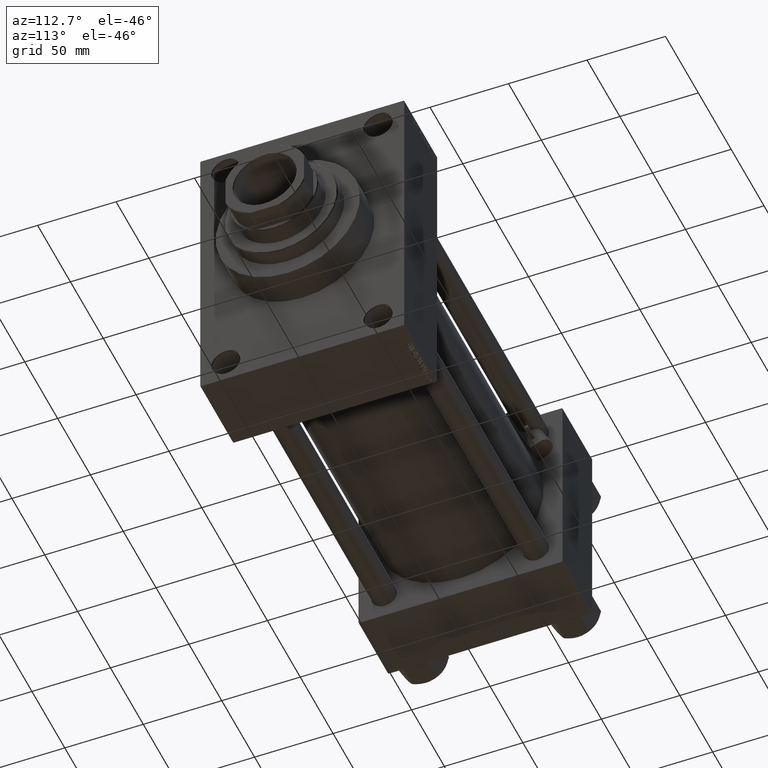
[diagram: clean part render]
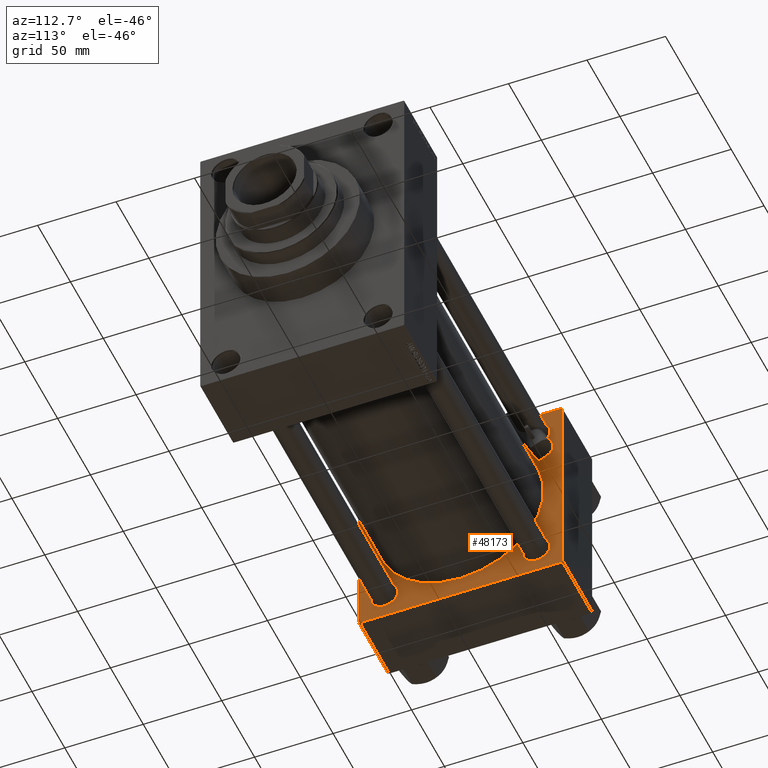
[diagram: same view with one face highlighted and labeled with its STEP entity id]
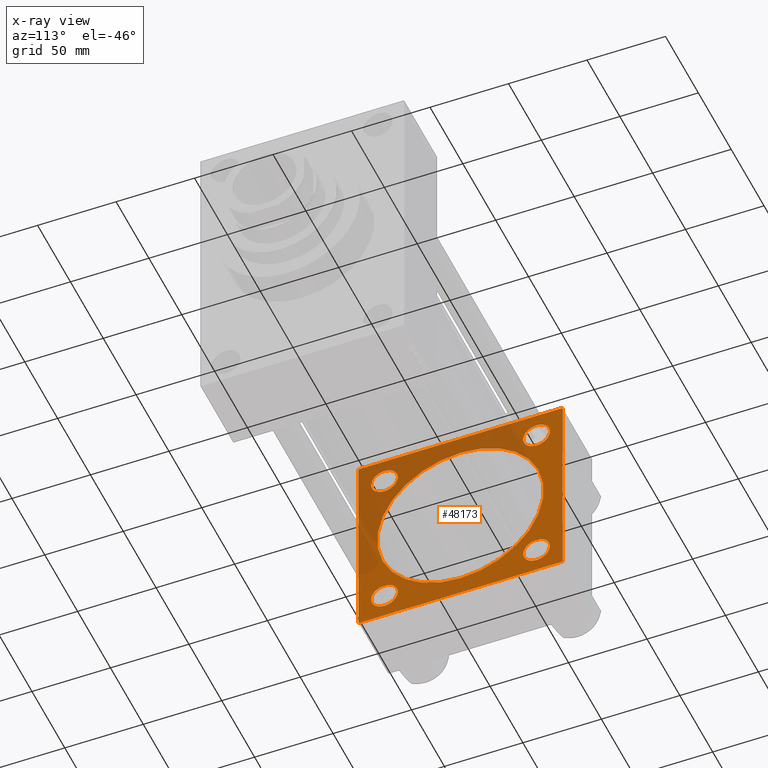
[diagram: x-ray of the same camera — body ghosted, the highlighted face saturated]
A machine part, auxiliary view. The second image highlights one B-rep face of the part: STEP entity #48173.
The next image is the same camera in x-ray: the body ghosted, the highlighted face saturated — about 37% of this face is hidden behind the body in this view.
In plain terms, the highlighted planar face has unit normal (-1, 0, 0).
Its self-contained STEP definition (entity closure, byte-faithful):
#177 = AXIS2_PLACEMENT_3D ( 'NONE', #17802, #32871, #14582 ) ;
#591 = CARTESIAN_POINT ( 'NONE',  ( 45.00000000000000000, 48.45000000000000995, -48.45000000000001705 ) ) ;
#996 = CIRCLE ( 'NONE', #26118, 8.500000000000007105 ) ;
#1203 = DIRECTION ( 'NONE',  ( 1.000000000000000000, -0.000000000000000000, 0.000000000000000000 ) ) ;
#1392 = ORIENTED_EDGE ( 'NONE', *, *, #47196, .T. ) ;
#2723 = AXIS2_PLACEMENT_3D ( 'NONE', #10960, #15409, #3558 ) ;
#2805 = EDGE_CURVE ( 'NONE', #21128, #20370, #38162, .T. ) ;
#2915 = VERTEX_POINT ( 'NONE', #45778 ) ;
#3014 = ORIENTED_EDGE ( 'NONE', *, *, #28956, .F. ) ;
#3517 = ORIENTED_EDGE ( 'NONE', *, *, #20898, .T. ) ;
#3558 = DIRECTION ( 'NONE',  ( 0.000000000000000000, 0.000000000000000000, 1.000000000000000000 ) ) ;
#4017 = VECTOR ( 'NONE', #11678, 1000.000000000000000 ) ;
#4498 = LINE ( 'NONE', #38078, #23756 ) ;
#4811 = CARTESIAN_POINT ( 'NONE',  ( 45.00000000000000000, 65.00000000000000000, 65.00000000000001421 ) ) ;
#4866 = EDGE_LOOP ( 'NONE', ( #32804, #17348 ) ) ;
#5052 = VECTOR ( 'NONE', #43078, 1000.000000000000000 ) ;
#5221 = CIRCLE ( 'NONE', #23391, 8.500000000000007105 ) ;
#6345 = EDGE_CURVE ( 'NONE', #2915, #31815, #13691, .T. ) ;
#7552 = ORIENTED_EDGE ( 'NONE', *, *, #38039, .T. ) ;
#7822 = ORIENTED_EDGE ( 'NONE', *, *, #23628, .F. ) ;
#7863 = CARTESIAN_POINT ( 'NONE',  ( 44.99999999999998579, -2.602085213965210642E-15, 0.000000000000000000 ) ) ;
#7883 = ORIENTED_EDGE ( 'NONE', *, *, #8517, .T. ) ;
#7956 = DIRECTION ( 'NONE',  ( 0.000000000000000000, -1.000000000000000000, -1.067522139062650425E-16 ) ) ;
#7967 = EDGE_CURVE ( 'NONE', #47102, #38177, #5221, .T. ) ;
#8109 = EDGE_CURVE ( 'NONE', #43784, #24369, #36780, .T. ) ;
#8367 = PLANE ( 'NONE',  #36718 ) ;
#8517 = EDGE_CURVE ( 'NONE', #31815, #24080, #22789, .T. ) ;
#9329 = VERTEX_POINT ( 'NONE', #28313 ) ;
#9986 = CARTESIAN_POINT ( 'NONE',  ( 45.00000000000000000, -65.00000000000000000, 64.50000000000000000 ) ) ;
#10377 = VERTEX_POINT ( 'NONE', #11272 ) ;
#10960 = CARTESIAN_POINT ( 'NONE',  ( 45.00000000000000000, 48.45000000000000995, 48.45000000000001705 ) ) ;
#11272 = CARTESIAN_POINT ( 'NONE',  ( 44.99999999999998579, -2.602085213965210642E-15, 53.00000000000000711 ) ) ;
#11315 = VERTEX_POINT ( 'NONE', #32372 ) ;
#11355 = CARTESIAN_POINT ( 'NONE',  ( 45.00000000000000000, 48.45000000000000995, 56.95000000000002416 ) ) ;
#11440 = VECTOR ( 'NONE', #46432, 1000.000000000000000 ) ;
#11442 = ORIENTED_EDGE ( 'NONE', *, *, #36830, .T. ) ;
#11449 = DIRECTION ( 'NONE',  ( 0.000000000000000000, 0.000000000000000000, 1.000000000000000000 ) ) ;
#11600 = ORIENTED_EDGE ( 'NONE', *, *, #6345, .T. ) ;
#11664 = VECTOR ( 'NONE', #35487, 1000.000000000000114 ) ;
#11678 = DIRECTION ( 'NONE',  ( 0.000000000000000000, 0.000000000000000000, -1.000000000000000000 ) ) ;
#12301 = CARTESIAN_POINT ( 'NONE',  ( 45.00000000000000000, 48.45000000000000995, 48.45000000000001705 ) ) ;
#13045 = FACE_BOUND ( 'NONE', #37394, .T. ) ;
#13423 = EDGE_CURVE ( 'NONE', #20370, #21128, #24749, .T. ) ;
#13691 = LINE ( 'NONE', #9986, #5052 ) ;
#14273 = ORIENTED_EDGE ( 'NONE', *, *, #14684, .F. ) ;
#14497 = VERTEX_POINT ( 'NONE', #37431 ) ;
#14582 = DIRECTION ( 'NONE',  ( 0.000000000000000000, 0.000000000000000000, 1.000000000000000000 ) ) ;
#14596 = CIRCLE ( 'NONE', #48481, 8.500000000000007105 ) ;
#14684 = EDGE_CURVE ( 'NONE', #33637, #39035, #27781, .T. ) ;
#15409 = DIRECTION ( 'NONE',  ( -1.000000000000000000, 0.000000000000000000, -0.000000000000000000 ) ) ;
#15514 = CIRCLE ( 'NONE', #40751, 53.00000000000000711 ) ;
#15614 = DIRECTION ( 'NONE',  ( 1.000000000000000000, -0.000000000000000000, 0.000000000000000000 ) ) ;
#16266 = FACE_BOUND ( 'NONE', #17529, .T. ) ;
#16482 = VECTOR ( 'NONE', #22821, 1000.000000000000000 ) ;
#16500 = FACE_OUTER_BOUND ( 'NONE', #37265, .T. ) ;
#16535 = CARTESIAN_POINT ( 'NONE',  ( 45.00000000000000000, 48.45000000000000995, -56.95000000000002416 ) ) ;
#16733 = ORIENTED_EDGE ( 'NONE', *, *, #16890, .T. ) ;
#16737 = FACE_BOUND ( 'NONE', #47287, .T. ) ;
#16890 = EDGE_CURVE ( 'NONE', #39458, #45108, #28802, .T. ) ;
#16937 = DIRECTION ( 'NONE',  ( -1.000000000000000000, 0.000000000000000000, -0.000000000000000000 ) ) ;
#17183 = CARTESIAN_POINT ( 'NONE',  ( 45.00000000000000000, -48.44999999999999574, 48.45000000000003126 ) ) ;
#17348 = ORIENTED_EDGE ( 'NONE', *, *, #7967, .T. ) ;
#17529 = EDGE_LOOP ( 'NONE', ( #11442, #44392 ) ) ;
#17802 = CARTESIAN_POINT ( 'NONE',  ( 45.00000000000000000, -48.44999999999999574, 48.45000000000003126 ) ) ;
#18540 = AXIS2_PLACEMENT_3D ( 'NONE', #30213, #33196, #48251 ) ;
#19282 = CARTESIAN_POINT ( 'NONE',  ( 45.00000000000000000, -48.44999999999999574, -39.95000000000001705 ) ) ;
#20076 = DIRECTION ( 'NONE',  ( -0.000000000000000000, 0.7071067811865474617, 0.7071067811865474617 ) ) ;
#20189 = CARTESIAN_POINT ( 'NONE',  ( 44.99999999999998579, 3.888542821515762466E-15, -53.00000000000000711 ) ) ;
#20370 = VERTEX_POINT ( 'NONE', #30366 ) ;
#20427 = LINE ( 'NONE', #38947, #11664 ) ;
#20490 = LINE ( 'NONE', #42724, #11440 ) ;
#20898 = EDGE_CURVE ( 'NONE', #11315, #39035, #38603, .T. ) ;
#21128 = VERTEX_POINT ( 'NONE', #11355 ) ;
#22086 = CARTESIAN_POINT ( 'NONE',  ( 45.00000000000000000, 48.45000000000000995, -39.95000000000000284 ) ) ;
#22320 = CARTESIAN_POINT ( 'NONE',  ( 45.00000000000000000, 65.00000000000000000, -64.99999999999998579 ) ) ;
#22364 = CIRCLE ( 'NONE', #31050, 53.00000000000000711 ) ;
#22416 = VECTOR ( 'NONE', #35190, 1000.000000000000000 ) ;
#22789 = LINE ( 'NONE', #34630, #4017 ) ;
#22821 = DIRECTION ( 'NONE',  ( 0.000000000000000000, -1.000000000000000000, -1.067522139062650425E-16 ) ) ;
#23165 = DIRECTION ( 'NONE',  ( -1.000000000000000000, 0.000000000000000000, -0.000000000000000000 ) ) ;
#23391 = AXIS2_PLACEMENT_3D ( 'NONE', #24354, #16937, #32016 ) ;
#23628 = EDGE_CURVE ( 'NONE', #10377, #26627, #15514, .T. ) ;
#23756 = VECTOR ( 'NONE', #7956, 1000.000000000000000 ) ;
#24080 = VERTEX_POINT ( 'NONE', #26401 ) ;
#24354 = CARTESIAN_POINT ( 'NONE',  ( 45.00000000000000000, -48.44999999999999574, -48.45000000000003126 ) ) ;
#24369 = VERTEX_POINT ( 'NONE', #27850 ) ;
#24740 = ORIENTED_EDGE ( 'NONE', *, *, #2805, .T. ) ;
#24749 = CIRCLE ( 'NONE', #46797, 8.500000000000007105 ) ;
#24915 = DIRECTION ( 'NONE',  ( 0.000000000000000000, 0.000000000000000000, 1.000000000000000000 ) ) ;
#25418 = CIRCLE ( 'NONE', #177, 8.500000000000007105 ) ;
#26041 = LINE ( 'NONE', #22320, #16482 ) ;
#26118 = AXIS2_PLACEMENT_3D ( 'NONE', #39705, #39463, #24915 ) ;
#26401 = CARTESIAN_POINT ( 'NONE',  ( 45.00000000000000000, -65.00000000000000000, -64.49999999999991473 ) ) ;
#26627 = VERTEX_POINT ( 'NONE', #20189 ) ;
#26630 = EDGE_CURVE ( 'NONE', #33637, #9329, #20427, .T. ) ;
#27133 = CARTESIAN_POINT ( 'NONE',  ( 45.00000000000000000, -48.44999999999999574, 56.95000000000003837 ) ) ;
#27781 = LINE ( 'NONE', #4811, #22416 ) ;
#27850 = CARTESIAN_POINT ( 'NONE',  ( 45.00000000000000000, -48.44999999999999574, 39.95000000000001705 ) ) ;
#28313 = CARTESIAN_POINT ( 'NONE',  ( 45.00000000000000000, 64.49999999999997158, 65.00000000000001421 ) ) ;
#28544 = DIRECTION ( 'NONE',  ( 0.000000000000000000, 0.000000000000000000, 1.000000000000000000 ) ) ;
#28802 = CIRCLE ( 'NONE', #18540, 8.500000000000007105 ) ;
#28956 = EDGE_CURVE ( 'NONE', #11315, #14497, #26041, .T. ) ;
#30213 = CARTESIAN_POINT ( 'NONE',  ( 45.00000000000000000, 48.45000000000000995, -48.45000000000001705 ) ) ;
#30366 = CARTESIAN_POINT ( 'NONE',  ( 45.00000000000000000, 48.45000000000000995, 39.95000000000000284 ) ) ;
#31050 = AXIS2_PLACEMENT_3D ( 'NONE', #7863, #1203, #42435 ) ;
#31334 = CARTESIAN_POINT ( 'NONE',  ( 45.00000000000000000, 0.000000000000000000, 0.000000000000000000 ) ) ;
#31805 = DIRECTION ( 'NONE',  ( -0.000000000000000000, 0.000000000000000000, 1.000000000000000000 ) ) ;
#31815 = VERTEX_POINT ( 'NONE', #38215 ) ;
#32016 = DIRECTION ( 'NONE',  ( 0.000000000000000000, 0.000000000000000000, 1.000000000000000000 ) ) ;
#32254 = DIRECTION ( 'NONE',  ( -1.000000000000000000, 0.000000000000000000, -0.000000000000000000 ) ) ;
#32372 = CARTESIAN_POINT ( 'NONE',  ( 45.00000000000000000, 64.49999999999997158, -64.99999999999998579 ) ) ;
#32804 = ORIENTED_EDGE ( 'NONE', *, *, #37051, .T. ) ;
#32871 = DIRECTION ( 'NONE',  ( -1.000000000000000000, 0.000000000000000000, -0.000000000000000000 ) ) ;
#33196 = DIRECTION ( 'NONE',  ( -1.000000000000000000, 0.000000000000000000, -0.000000000000000000 ) ) ;
#33637 = VERTEX_POINT ( 'NONE', #42026 ) ;
#34128 = DIRECTION ( 'NONE',  ( 0.000000000000000000, 0.000000000000000000, 1.000000000000000000 ) ) ;
#34305 = EDGE_LOOP ( 'NONE', ( #16733, #44959 ) ) ;
#34630 = CARTESIAN_POINT ( 'NONE',  ( 45.00000000000000000, -65.00000000000000000, 65.00000000000000000 ) ) ;
#35190 = DIRECTION ( 'NONE',  ( 0.000000000000000000, 0.000000000000000000, -1.000000000000000000 ) ) ;
#35487 = DIRECTION ( 'NONE',  ( 0.000000000000000000, -0.7071067811865474617, 0.7071067811865474617 ) ) ;
#35930 = ORIENTED_EDGE ( 'NONE', *, *, #43796, .F. ) ;
#36430 = ORIENTED_EDGE ( 'NONE', *, *, #26630, .T. ) ;
#36718 = AXIS2_PLACEMENT_3D ( 'NONE', #31334, #38489, #31805 ) ;
#36780 = CIRCLE ( 'NONE', #43080, 8.500000000000007105 ) ;
#36830 = EDGE_CURVE ( 'NONE', #24369, #43784, #25418, .T. ) ;
#37051 = EDGE_CURVE ( 'NONE', #38177, #47102, #996, .T. ) ;
#37265 = EDGE_LOOP ( 'NONE', ( #3014, #3517, #14273, #36430, #7552, #11600, #7883, #1392 ) ) ;
#37394 = EDGE_LOOP ( 'NONE', ( #7822, #35930 ) ) ;
#37431 = CARTESIAN_POINT ( 'NONE',  ( 45.00000000000000000, -64.49999999999994316, -65.00000000000000000 ) ) ;
#38039 = EDGE_CURVE ( 'NONE', #9329, #2915, #4498, .T. ) ;
#38078 = CARTESIAN_POINT ( 'NONE',  ( 45.00000000000000000, 65.00000000000000000, 65.00000000000001421 ) ) ;
#38162 = CIRCLE ( 'NONE', #2723, 8.500000000000007105 ) ;
#38177 = VERTEX_POINT ( 'NONE', #47940 ) ;
#38215 = CARTESIAN_POINT ( 'NONE',  ( 45.00000000000000000, -65.00000000000000000, 64.50000000000000000 ) ) ;
#38489 = DIRECTION ( 'NONE',  ( -1.000000000000000000, 0.000000000000000000, -0.000000000000000000 ) ) ;
#38603 = LINE ( 'NONE', #38838, #41446 ) ;
#38838 = CARTESIAN_POINT ( 'NONE',  ( 45.00000000000000000, 65.00000000000000000, -64.49999999999995737 ) ) ;
#38947 = CARTESIAN_POINT ( 'NONE',  ( 45.00000000000000000, 64.49999999999997158, 65.00000000000001421 ) ) ;
#39035 = VERTEX_POINT ( 'NONE', #41366 ) ;
#39458 = VERTEX_POINT ( 'NONE', #16535 ) ;
#39463 = DIRECTION ( 'NONE',  ( -1.000000000000000000, 0.000000000000000000, -0.000000000000000000 ) ) ;
#39705 = CARTESIAN_POINT ( 'NONE',  ( 45.00000000000000000, -48.44999999999999574, -48.45000000000003126 ) ) ;
#40751 = AXIS2_PLACEMENT_3D ( 'NONE', #42834, #15614, #34128 ) ;
#41075 = DIRECTION ( 'NONE',  ( -1.000000000000000000, 0.000000000000000000, -0.000000000000000000 ) ) ;
#41366 = CARTESIAN_POINT ( 'NONE',  ( 45.00000000000000000, 65.00000000000000000, -64.49999999999995737 ) ) ;
#41446 = VECTOR ( 'NONE', #20076, 1000.000000000000114 ) ;
#42026 = CARTESIAN_POINT ( 'NONE',  ( 45.00000000000000000, 65.00000000000000000, 64.49999999999998579 ) ) ;
#42203 = FACE_BOUND ( 'NONE', #4866, .T. ) ;
#42435 = DIRECTION ( 'NONE',  ( 0.000000000000000000, 0.000000000000000000, 1.000000000000000000 ) ) ;
#42443 = FACE_BOUND ( 'NONE', #34305, .T. ) ;
#42724 = CARTESIAN_POINT ( 'NONE',  ( 45.00000000000000000, -64.49999999999994316, -65.00000000000000000 ) ) ;
#42834 = CARTESIAN_POINT ( 'NONE',  ( 44.99999999999998579, -2.602085213965210642E-15, 0.000000000000000000 ) ) ;
#43078 = DIRECTION ( 'NONE',  ( -0.000000000000000000, -0.7071067811865672237, -0.7071067811865279218 ) ) ;
#43080 = AXIS2_PLACEMENT_3D ( 'NONE', #17183, #32254, #28544 ) ;
#43784 = VERTEX_POINT ( 'NONE', #27133 ) ;
#43796 = EDGE_CURVE ( 'NONE', #26627, #10377, #22364, .T. ) ;
#44392 = ORIENTED_EDGE ( 'NONE', *, *, #8109, .T. ) ;
#44545 = ORIENTED_EDGE ( 'NONE', *, *, #13423, .T. ) ;
#44959 = ORIENTED_EDGE ( 'NONE', *, *, #47635, .T. ) ;
#45108 = VERTEX_POINT ( 'NONE', #22086 ) ;
#45778 = CARTESIAN_POINT ( 'NONE',  ( 45.00000000000000000, -64.49999999999997158, 65.00000000000000000 ) ) ;
#46362 = DIRECTION ( 'NONE',  ( 0.000000000000000000, 0.000000000000000000, 1.000000000000000000 ) ) ;
#46432 = DIRECTION ( 'NONE',  ( 0.000000000000000000, 0.7071067811865279218, -0.7071067811865671127 ) ) ;
#46797 = AXIS2_PLACEMENT_3D ( 'NONE', #12301, #23165, #46362 ) ;
#47102 = VERTEX_POINT ( 'NONE', #19282 ) ;
#47196 = EDGE_CURVE ( 'NONE', #24080, #14497, #20490, .T. ) ;
#47287 = EDGE_LOOP ( 'NONE', ( #44545, #24740 ) ) ;
#47635 = EDGE_CURVE ( 'NONE', #45108, #39458, #14596, .T. ) ;
#47940 = CARTESIAN_POINT ( 'NONE',  ( 45.00000000000000000, -48.44999999999999574, -56.95000000000003837 ) ) ;
#48173 = ADVANCED_FACE ( 'NONE', ( #42203, #42443, #16266, #16737, #13045, #16500 ), #8367, .F. ) ;
#48251 = DIRECTION ( 'NONE',  ( 0.000000000000000000, 0.000000000000000000, 1.000000000000000000 ) ) ;
#48481 = AXIS2_PLACEMENT_3D ( 'NONE', #591, #41075, #11449 ) ;